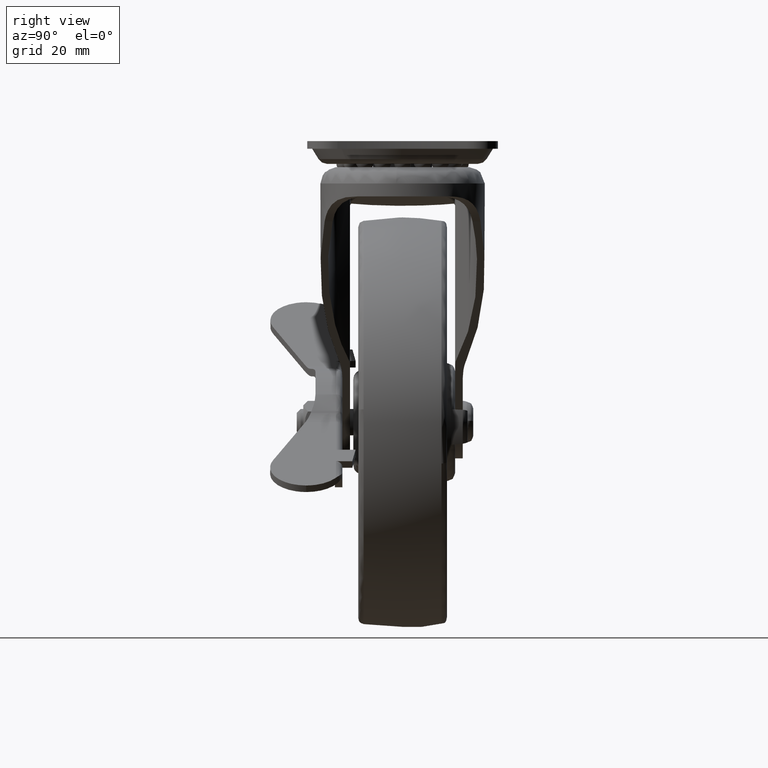
[diagram: clean part render]
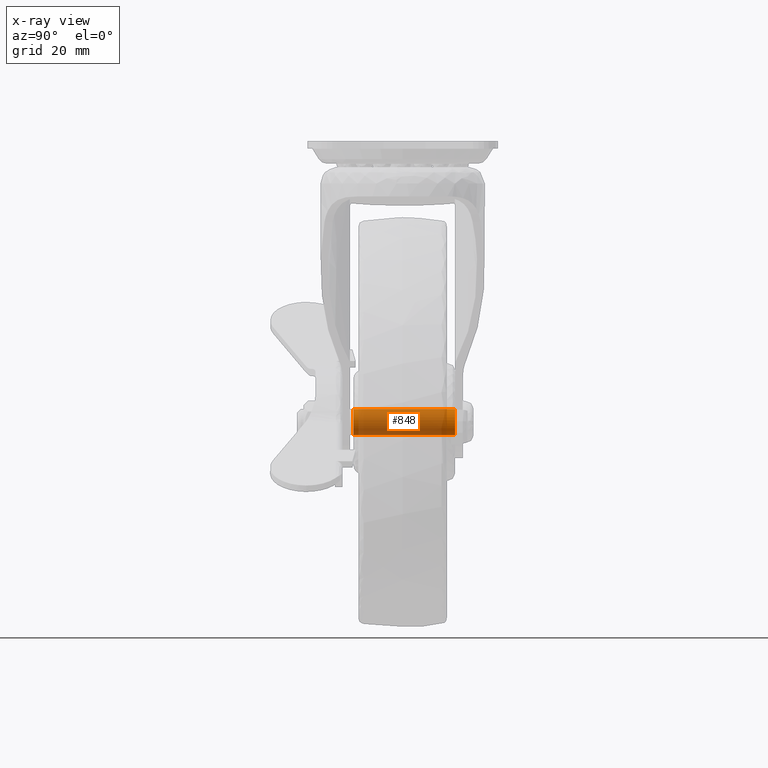
[diagram: x-ray — body ghosted, one internal face saturated and labeled with its STEP entity id]
A machine part, right view, then the same camera in x-ray: the body is ghosted and one INTERNAL B-rep face — a face not visible from any outside direction — is saturated and labeled: STEP entity #848.
In plain terms, the highlighted face is a freeform B-spline surface patch.
Its self-contained STEP definition (entity closure, byte-faithful):
#711=CARTESIAN_POINT('',(-3.054222571761775,16.774999999999999,-2.582968153528029));
#712=CARTESIAN_POINT('',(-2.980299132925977,16.775000000000009,-2.670378691349083));
#713=CARTESIAN_POINT('',(-2.901497484049070,16.774999999999999,-2.753418302774938));
#714=CARTESIAN_POINT('',(-0.148079181274130,16.775000000000006,-5.654915786824008));
#715=CARTESIAN_POINT('',(2.753418302774939,16.774999999999999,-2.901497484049068));
#716=CARTESIAN_POINT('',(5.654915786824010,16.775000000000006,-0.148079181274129));
#717=CARTESIAN_POINT('',(2.901497484049070,16.774999999999999,2.753418302774941));
#718=CARTESIAN_POINT('',(0.148079181274130,16.775000000000006,5.654915786824011));
#719=CARTESIAN_POINT('',(-2.753418302774939,16.774999999999999,2.901497484049072));
#720=CARTESIAN_POINT('',(-3.054222571761775,-15.794375000000000,-2.582968153528029));
#721=CARTESIAN_POINT('',(-2.980299132925977,-15.794374999999999,-2.670378691349083));
#722=CARTESIAN_POINT('',(-2.901497484049070,-15.794375000000000,-2.753418302774938));
#723=CARTESIAN_POINT('',(-0.148079181274130,-15.794375000000004,-5.654915786824008));
#724=CARTESIAN_POINT('',(2.753418302774939,-15.794375000000000,-2.901497484049068));
#725=CARTESIAN_POINT('',(5.654915786824010,-15.794375000000004,-0.148079181274129));
#726=CARTESIAN_POINT('',(2.901497484049070,-15.794375000000000,2.753418302774941));
#727=CARTESIAN_POINT('',(0.148079181274130,-15.794375000000004,5.654915786824011));
#728=CARTESIAN_POINT('',(-2.753418302774939,-15.794375000000000,2.901497484049072));
#736=(BOUNDED_SURFACE()B_SPLINE_SURFACE(2,1,((#711,#720),(#712,#721),(#713,#722),(#714,#723),(#715,#724),(#716,#725),(#717,#726),(#718,#727),(#719,#728)),.UNSPECIFIED.,.F.,.F.,.U.)B_SPLINE_SURFACE_WITH_KNOTS((3,2,2,2,3),(2,2),(0.0,0.265096679918774,6.892513677888112,13.519930675857450,20.147347673826790),(0.0,32.569375000000008),.UNSPECIFIED.)GEOMETRIC_REPRESENTATION_ITEM()RATIONAL_B_SPLINE_SURFACE(((0.977505800795127,0.977505800795127),(0.988284271247462,0.988284271247462),(1.0,1.0),(0.707106781186548,0.707106781186548),(1.0,1.0),(0.707106781186548,0.707106781186548),(1.0,1.0),(0.707106781186548,0.707106781186548),(1.0,1.0)))REPRESENTATION_ITEM('')SURFACE());
#737=CARTESIAN_POINT('',(-3.054223753595365,16.000000000003809,-2.582968710753789));
#738=VERTEX_POINT('',#737);
#739=CARTESIAN_POINT('',(0.0,16.0,-3.999999999999998));
#740=VERTEX_POINT('',#739);
#741=CARTESIAN_POINT('',(-3.054223753595365,16.000000000003809,-2.582968710753789));
#742=CARTESIAN_POINT('',(-2.703971578174702,16.000000000003389,-2.998068488678062));
#743=CARTESIAN_POINT('',(-2.034727323233813,16.000000000002530,-3.521794447222223));
#744=CARTESIAN_POINT('',(-0.941139007268130,16.000000000001190,-3.924363280587752));
#745=CARTESIAN_POINT('',(-0.325810764075465,16.000000000000380,-4.000077354485476));
#746=CARTESIAN_POINT('',(0.0,16.0,-3.999999999999998));
#747=B_SPLINE_CURVE_WITH_KNOTS('',3,(#741,#742,#743,#744,#745,#746),.UNSPECIFIED.,.F.,.U.,(4,1,1,4),(0.000000115110377,1.629071549880002,2.497879937303611,3.475314082156541),.UNSPECIFIED.);
#748=EDGE_CURVE('',#738,#740,#747,.T.);
#749=ORIENTED_EDGE('',*,*,#748,.F.);
#750=CARTESIAN_POINT('',(-3.054223750863276,-15.0,-2.582968713984257));
#751=VERTEX_POINT('',#750);
#752=CARTESIAN_POINT('',(-3.054223753595365,16.000000000003809,-2.582968710753789));
#753=CARTESIAN_POINT('',(-3.054223750863276,-15.0,-2.582968713984257));
#754=QUASI_UNIFORM_CURVE('',1,(#752,#753),.UNSPECIFIED.,.F.,.U.);
#755=EDGE_CURVE('',#738,#751,#754,.T.);
#756=ORIENTED_EDGE('',*,*,#755,.T.);
#757=CARTESIAN_POINT('',(0.0,-15.0,-3.999999999999888));
#758=VERTEX_POINT('',#757);
#759=CARTESIAN_POINT('',(-3.054223750863276,-15.0,-2.582968713984257));
#760=CARTESIAN_POINT('',(-2.750589959809833,-15.000000000000011,-2.942584226716726));
#761=CARTESIAN_POINT('',(-2.099269480691118,-15.0,-3.481870872991150));
#762=CARTESIAN_POINT('',(-1.013585454699647,-14.999999999999989,-3.915565838080406));
#763=CARTESIAN_POINT('',(-0.325803365576775,-14.999999999999980,-4.000066525657108));
#764=CARTESIAN_POINT('',(0.0,-15.0,-3.999999999999888));
#765=B_SPLINE_CURVE_WITH_KNOTS('',3,(#759,#760,#761,#762,#763,#764),.UNSPECIFIED.,.F.,.U.,(4,1,1,4),(0.000000115110309,1.411875847705842,2.497879934262343,3.475314077925214),.UNSPECIFIED.);
#766=EDGE_CURVE('',#751,#758,#765,.T.);
#767=ORIENTED_EDGE('',*,*,#766,.T.);
#768=CARTESIAN_POINT('',(3.999999999996613,-15.0,0.000005119947370));
#769=VERTEX_POINT('',#768);
#770=CARTESIAN_POINT('',(0.0,-15.0,-3.999999999999888));
#771=CARTESIAN_POINT('',(0.392699312848735,-15.0,-4.000128916682717));
#772=CARTESIAN_POINT('',(1.243555516333030,-15.000000000000011,-3.873859003906678));
#773=CARTESIAN_POINT('',(2.370836791111469,-15.000000000000020,-3.306584295623443));
#774=CARTESIAN_POINT('',(3.165951308871323,-14.999999999999980,-2.511017404397044));
#775=CARTESIAN_POINT('',(3.808480000018365,-15.000000000000011,-1.439245192559032));
#776=CARTESIAN_POINT('',(4.000992344568559,-14.999999999999980,-0.589270614172609));
#777=CARTESIAN_POINT('',(3.999999999996613,-15.0,0.000005119947370));
#778=B_SPLINE_CURVE_WITH_KNOTS('',3,(#770,#771,#772,#773,#774,#775,#776,#777),.UNSPECIFIED.,.F.,.U.,(4,1,1,1,1,4),(0.000000488140828,1.178123957096469,2.552675398436150,3.730670953865528,4.516141188848950,6.283345863140111),.UNSPECIFIED.);
#779=EDGE_CURVE('',#758,#769,#778,.T.);
#780=ORIENTED_EDGE('',*,*,#779,.T.);
#781=CARTESIAN_POINT('',(0.0,-15.0,3.999999999999892));
#782=VERTEX_POINT('',#781);
#783=CARTESIAN_POINT('',(3.999999999996613,-15.0,0.000005119947370));
#784=CARTESIAN_POINT('',(4.000747116053340,-15.000000000000011,0.556462950955219));
#785=CARTESIAN_POINT('',(3.798624986354392,-14.999999999999980,1.504850432854290));
#786=CARTESIAN_POINT('',(3.090645086566963,-15.000000000000011,2.622828019425518));
#787=CARTESIAN_POINT('',(2.224703113751172,-15.000000000000091,3.388470514716393));
#788=CARTESIAN_POINT('',(1.178042467305424,-14.999999999999741,3.883456824258234));
#789=CARTESIAN_POINT('',(0.392711312951918,-15.000000000000171,4.000158023966224));
#790=CARTESIAN_POINT('',(0.0,-15.0,3.999999999999892));
#791=B_SPLINE_CURVE_WITH_KNOTS('',3,(#783,#784,#785,#786,#787,#788,#789,#790),.UNSPECIFIED.,.F.,.U.,(4,1,1,1,1,4),(0.000000495145636,1.669016749968050,2.847207899111133,3.927075995233360,5.105217704748729,6.283340091622125),.UNSPECIFIED.);
#792=EDGE_CURVE('',#769,#782,#791,.T.);
#793=ORIENTED_EDGE('',*,*,#792,.T.);
#794=CARTESIAN_POINT('',(-2.753417197908278,-15.0,2.901496770358330));
#795=VERTEX_POINT('',#794);
#796=CARTESIAN_POINT('',(0.0,-15.0,3.999999999999892));
#797=CARTESIAN_POINT('',(-0.474563972585913,-15.000000000000030,4.000308726688829));
#798=CARTESIAN_POINT('',(-1.486564436666032,-14.999999999999959,3.817711112389035));
#799=CARTESIAN_POINT('',(-2.363701731815162,-15.000000000000030,3.272181528989716));
#800=CARTESIAN_POINT('',(-2.753417197908278,-15.0,2.901496770358330));
#801=B_SPLINE_CURVE_WITH_KNOTS('',3,(#796,#797,#798,#799,#800),.UNSPECIFIED.,.F.,.U.,(4,1,4),(0.000000113859220,1.423598938664641,3.036943314918251),.UNSPECIFIED.);
#802=EDGE_CURVE('',#782,#795,#801,.T.);
#803=ORIENTED_EDGE('',*,*,#802,.T.);
#804=CARTESIAN_POINT('',(-2.753417195296219,15.999999999996881,2.901496772837159));
#805=VERTEX_POINT('',#804);
#806=CARTESIAN_POINT('',(-2.753417195296219,15.999999999996881,2.901496772837159));
#807=CARTESIAN_POINT('',(-2.753417197908278,-15.0,2.901496770358330));
#808=QUASI_UNIFORM_CURVE('',1,(#806,#807),.UNSPECIFIED.,.F.,.U.);
#809=EDGE_CURVE('',#805,#795,#808,.T.);
#810=ORIENTED_EDGE('',*,*,#809,.F.);
#811=CARTESIAN_POINT('',(0.0,16.0,4.000000000000002));
#812=VERTEX_POINT('',#811);
#813=CARTESIAN_POINT('',(0.0,16.0,4.000000000000002));
#814=CARTESIAN_POINT('',(-0.601263026401633,15.999999999999289,4.001028763673459));
#815=CARTESIAN_POINT('',(-1.612477585144712,15.999999999998151,3.767189255358260));
#816=CARTESIAN_POINT('',(-2.455226298385902,15.999999999997261,3.184709049590692));
#817=CARTESIAN_POINT('',(-2.753417195296219,15.999999999996881,2.901496772837159));
#818=B_SPLINE_CURVE_WITH_KNOTS('',3,(#813,#814,#815,#816,#817),.UNSPECIFIED.,.F.,.U.,(4,1,4),(0.000000113859186,1.803163382080724,3.036943311317026),.UNSPECIFIED.);
#819=EDGE_CURVE('',#812,#805,#818,.T.);
#820=ORIENTED_EDGE('',*,*,#819,.F.);
#821=CARTESIAN_POINT('',(3.999999999996724,16.0,0.000005119947374));
#822=VERTEX_POINT('',#821);
#823=CARTESIAN_POINT('',(3.999999999996724,16.0,0.000005119947374));
#824=CARTESIAN_POINT('',(4.000157631220384,16.000000000000028,0.392715046732524));
#825=CARTESIAN_POINT('',(3.883446126342081,16.0,1.178039618693029));
#826=CARTESIAN_POINT('',(3.346142405348188,15.999999999999970,2.314529402943466));
#827=CARTESIAN_POINT('',(2.544702895066609,16.000000000000028,3.156363111988624));
#828=CARTESIAN_POINT('',(1.406592501824867,15.999999999999920,3.819358389445918));
#829=CARTESIAN_POINT('',(0.556501782767986,16.000000000000011,4.000800517404918));
#830=CARTESIAN_POINT('',(0.0,16.0,4.000000000000002));
#831=B_SPLINE_CURVE_WITH_KNOTS('',3,(#823,#824,#825,#826,#827,#828,#829,#830),.UNSPECIFIED.,.F.,.U.,(4,1,1,1,1,4),(0.000000495145593,1.178122879613584,2.356264584675421,3.730667524895925,4.614323834630031,6.283340091622296),.UNSPECIFIED.);
#832=EDGE_CURVE('',#822,#812,#831,.T.);
#833=ORIENTED_EDGE('',*,*,#832,.F.);
#834=CARTESIAN_POINT('',(0.0,16.0,-3.999999999999998));
#835=CARTESIAN_POINT('',(0.392719405737868,16.0,-4.000179916044726));
#836=CARTESIAN_POINT('',(1.112545952344879,16.0,-3.893056861873401));
#837=CARTESIAN_POINT('',(2.197912182542838,16.000000000000011,-3.412269919026095));
#838=CARTESIAN_POINT('',(3.002491493032579,15.999999999999970,-2.718145461368099));
#839=CARTESIAN_POINT('',(3.623624862453535,16.000000000000039,-1.788400353749273));
#840=CARTESIAN_POINT('',(3.935639275138176,15.999999999999950,-0.916324146474888));
#841=CARTESIAN_POINT('',(4.000012014907217,16.000000000000021,-0.261784339974172));
#842=CARTESIAN_POINT('',(3.999999999996724,16.0,0.000005119947374));
#843=B_SPLINE_CURVE_WITH_KNOTS('',3,(#834,#835,#836,#837,#838,#839,#840,#841,#842),.UNSPECIFIED.,.F.,.U.,(4,1,1,1,1,1,4),(0.000000488141311,1.178123957096894,2.159941029955500,3.534367021522359,4.319796646593622,5.497939436730681,6.283345863140281),.UNSPECIFIED.);
#844=EDGE_CURVE('',#740,#822,#843,.T.);
#845=ORIENTED_EDGE('',*,*,#844,.F.);
#846=EDGE_LOOP('',(#749,#756,#767,#780,#793,#803,#810,#820,#833,#845));
#847=FACE_OUTER_BOUND('',#846,.T.);
#848=ADVANCED_FACE('',(#847),#736,.F.);